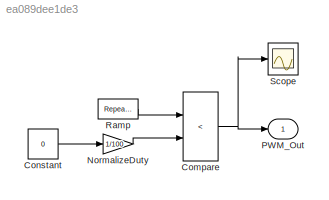
MODEL slx_ea089dee1de3
KIND model
CONFIG AbsTol = auto
CONFIG EnableMultiTasking = off
CONFIG FixedStep = auto
CONFIG MaxStep = auto
CONFIG MinStep = auto
CONFIG RelTol = 1e-3
CONFIG SampleTimeConstraint = Unconstrained
CONFIG SolverName = VariableStepAuto
CONFIG StartTime = 0.0
CONFIG StopTime = 10.0
BLOCK [RelationalOperator] Compare
  InputSameDT = off
  Operator = <
  OutDataTypeStr = boolean
  RndMeth = Simplest
BLOCK [Constant] Constant
  Value = 0
BLOCK [Gain] NormalizeDuty
  Gain = 1/100
BLOCK [Outport] PWM_Out
BLOCK [Reference] Ramp  REF=simulink/Sources/Repeating
Sequence
  SourceBlock = simulink/Sources/Repeating\nSequence
  SourceType = Repeating table
BLOCK [Scope] Scope
  ActiveDisplayYMaximum = 2.6369263285024154
  ActiveDisplayYMinimum = -2.3630736714975846
  Floating = off
  GraphicalSettings = {"AxesScalingProperties":{"AlignXAxis":"Center","AlignYAxis":"Center","AutoScaleXAxisLimits":false,"AxesScaling":"Manual","AxesScalingNumUpdates":10,"ExpandOnly":true,"ScaleAxesLimitsAtStop":false,"XAxisDataRange":100,"YAxisDataRange":80},"DisplayProperties":{"ColorOrder":["auto","auto","auto","auto","auto","auto","auto","auto","auto","auto","auto","auto","auto","auto","auto","auto","auto","auto",...<+1949ch>
  MultipleDisplayCache = [{"MaxYLimMag":1.125,"MaxYLimReal":2.6369263285024154,"MinYLimMag":0,"MinYLimReal":-2.3630736714975846,"PlotAsMagnitudePhase":false,"ShowGrid":true,"ShowLegend":false,"Title":"%<SignalLabel>","YLabel":""}]
  NumInputPorts = 1
  ScopeFrameLocation = window
  WasSavedAsWebScope = on
  WindowPosition = [838.000000,114.000000,560.000000,420.000000,]
NET Compare:1 -> PWM_Out:1, Scope:1
LINE Constant:1 -> NormalizeDuty:1
LINE NormalizeDuty:1 -> Compare:2
LINE Ramp:1 -> Compare:1
note: NET lines group one-source signal fan-out (src -> all destinations, sorted); 1:1 wires keep LINE
